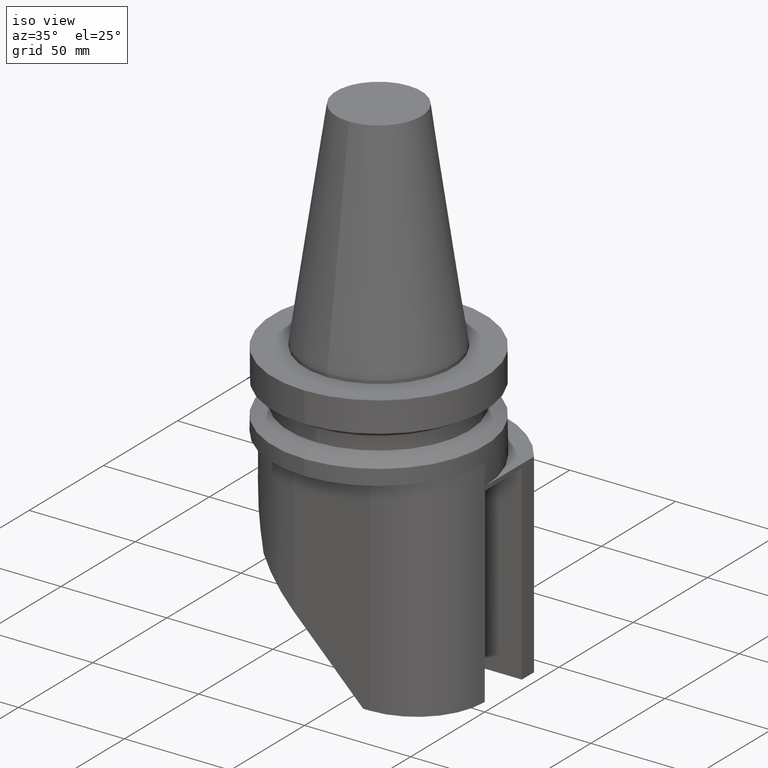
[diagram: clean part render]
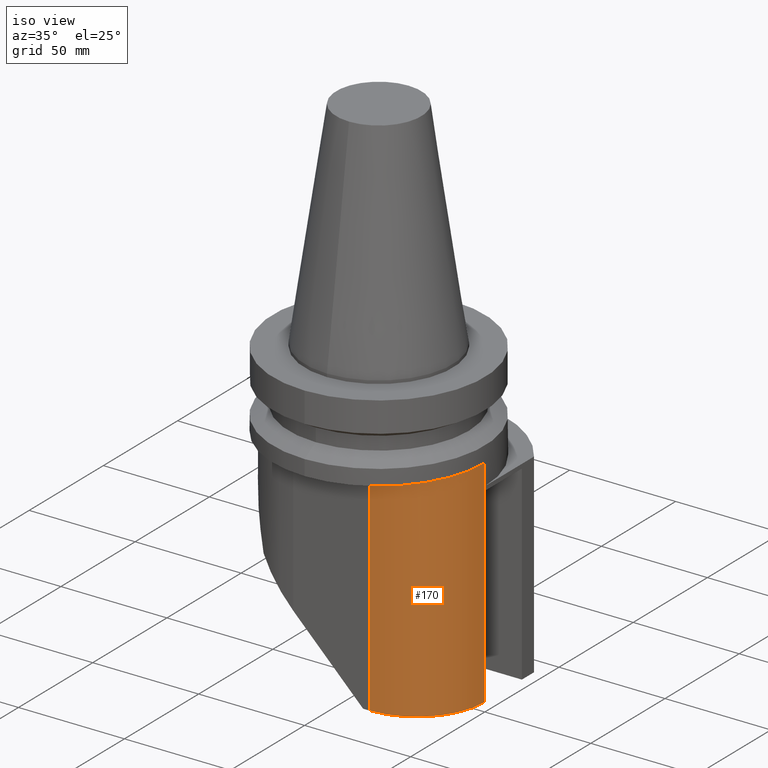
[diagram: same view with one face highlighted and labeled with its STEP entity id]
A machine part, iso view. The second image highlights one B-rep face of the part: STEP entity #170.
In plain terms, the highlighted cylindrical surface (partial cylindrical patch) has radius 32 mm, axis along (0, 0, -1).
Its self-contained STEP definition (entity closure, byte-faithful):
#100=EDGE_CURVE('Unnamed[1]',#294,#295,#296,.T.);
#120=EDGE_CURVE('Unnamed[1]',#319,#329,#330,.T.);
#170=ADVANCED_FACE('Unnamed[1]',(#398),#399,.T.);
#172=EDGE_CURVE('Unnamed[1]',#401,#319,#402,.T.);
#202=EDGE_CURVE('Unnamed[1]',#294,#401,#443,.T.);
#223=EDGE_CURVE('Unnamed[1]',#435,#329,#470,.T.);
#257=EDGE_CURVE('Unnamed[1]',#295,#435,#513,.T.);
#294=VERTEX_POINT('',#547);
#295=VERTEX_POINT('',#548);
#296=LINE('',#549,#550);
#319=VERTEX_POINT('',#581);
#329=VERTEX_POINT('',#596);
#330=CIRCLE('',#597,32.0);
#398=FACE_OUTER_BOUND('',#694,.T.);
#399=CYLINDRICAL_SURFACE('',#695,32.0);
#401=VERTEX_POINT('',#698);
#402=LINE('',#699,#700);
#435=VERTEX_POINT('',#745);
#443=CIRCLE('',#755,32.0);
#470=LINE('',#793,#794);
#513=LINE('',#858,#859);
#547=CARTESIAN_POINT('',(50.0000000000038,4.15851862521527E-012,-140.000000000001));
#548=CARTESIAN_POINT('',(50.0000000000038,3.76363904610196E-012,-49.9999999999986));
#549=CARTESIAN_POINT('',(50.0000000000038,4.17394917488453E-012,-266.000000000001));
#550=VECTOR('',#897,1.0);
#581=CARTESIAN_POINT('',(18.0000000000017,-31.9999999999942,-38.0000000000021));
#596=CARTESIAN_POINT('',(50.0000000000038,4.14602722786397E-012,-38.000000000002));
#597=AXIS2_PLACEMENT_3D('',#923,#924,#925);
#694=EDGE_LOOP('',(#1015,#1016,#1017,#1018,#1019,#1020));
#695=AXIS2_PLACEMENT_3D('',#1021,#1022,#1023);
#698=CARTESIAN_POINT('',(18.0000000000017,-31.9999999999942,-140.000000000001));
#699=CARTESIAN_POINT('',(18.0000000000017,-31.9999999999942,-266.000000000001));
#700=VECTOR('',#1024,1.0);
#745=CARTESIAN_POINT('',(50.0000000000038,4.14725187466312E-012,-48.0000000000074));
#755=AXIS2_PLACEMENT_3D('',#1082,#1083,#1084);
#793=CARTESIAN_POINT('',(50.000000000012,1.58421658542262E-011,-266.000000000001));
#794=VECTOR('',#1110,1.0);
#858=CARTESIAN_POINT('',(50.0000000000038,4.17394917488453E-012,-266.000000000001));
#859=VECTOR('',#1161,1.0);
#897=DIRECTION('',(-6.12323399573677E-017,-1.22464679914735E-016,1.0));
#923=CARTESIAN_POINT('',(18.0000000000038,5.86554064840341E-012,-38.000000000002));
#924=DIRECTION('',(-1.22464679914735E-016,-1.22464679914735E-016,1.0));
#925=DIRECTION('',(-1.0,1.22464679914735E-016,-1.22464679914735E-016));
#1015=ORIENTED_EDGE('',*,*,#202,.F.);
#1016=ORIENTED_EDGE('',*,*,#100,.T.);
#1017=ORIENTED_EDGE('',*,*,#257,.T.);
#1018=ORIENTED_EDGE('',*,*,#223,.T.);
#1019=ORIENTED_EDGE('',*,*,#120,.F.);
#1020=ORIENTED_EDGE('',*,*,#172,.F.);
#1021=CARTESIAN_POINT('',(18.0000000000038,5.89346259542397E-012,-266.000000000001));
#1022=DIRECTION('',(6.12323399573676E-017,1.22464679914735E-016,-1.0));
#1023=DIRECTION('',(-1.0,1.22464679914735E-016,-6.12323399573676E-017));
#1024=DIRECTION('',(-6.12323399573677E-017,-1.22464679914735E-016,1.0));
#1082=CARTESIAN_POINT('',(18.0000000000038,5.87803204575471E-012,-140.000000000001));
#1083=DIRECTION('',(6.12323399573676E-017,2.01724530860834E-015,-1.0));
#1084=DIRECTION('',(-1.0,1.22464679914735E-016,-6.12323399573674E-017));
#1110=DIRECTION('',(-6.12323399573677E-017,-1.22464679914735E-016,1.0));
#1161=DIRECTION('',(-6.12323399573677E-017,-1.22464679914735E-016,1.0));